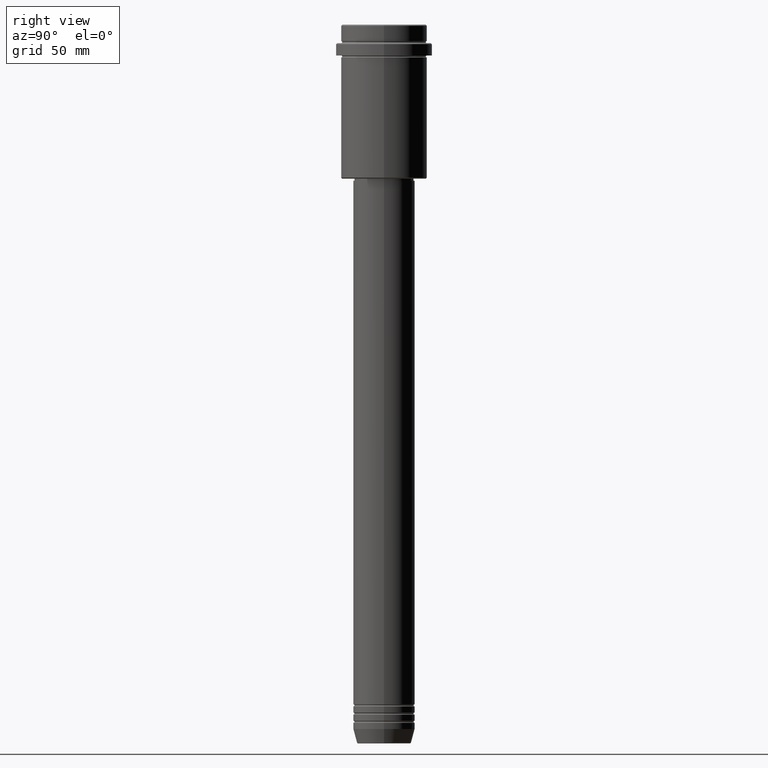
[diagram: clean part render]
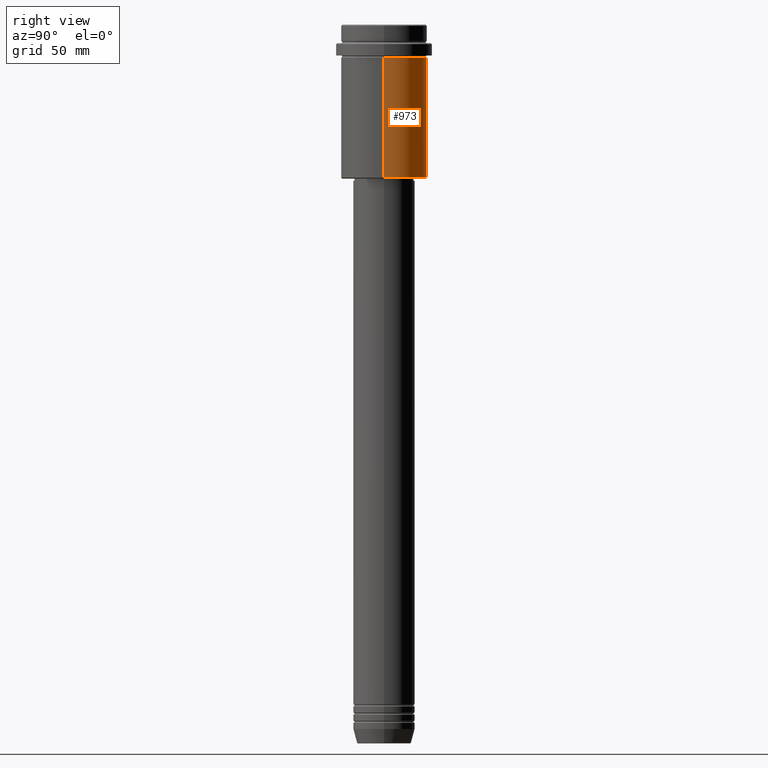
[diagram: same view with one face highlighted and labeled with its STEP entity id]
A machine part, right view. The second image highlights one B-rep face of the part: STEP entity #973.
In plain terms, the highlighted cylindrical surface (partial cylindrical patch) has radius 21 mm, axis along (-0, -0, 1).
Its self-contained STEP definition (entity closure, byte-faithful):
#17 = CARTESIAN_POINT ( 'NONE',  ( 0.000000000000000000, 0.000000000000000000, -74.49999999999997158 ) ) ;
#57 = ORIENTED_EDGE ( 'NONE', *, *, #845, .F. ) ;
#74 = VERTEX_POINT ( 'NONE', #622 ) ;
#109 = CIRCLE ( 'NONE', #721, 20.99999999999999645 ) ;
#126 = AXIS2_PLACEMENT_3D ( 'NONE', #17, #302, #1195 ) ;
#148 = EDGE_LOOP ( 'NONE', ( #1311, #581, #252, #57 ) ) ;
#190 = VERTEX_POINT ( 'NONE', #771 ) ;
#218 = CARTESIAN_POINT ( 'NONE',  ( -20.99999999999999645, 2.571758278209441267E-15, -74.49999999999997158 ) ) ;
#227 = CARTESIAN_POINT ( 'NONE',  ( -20.99999999999999645, 2.571758278209441267E-15, 0.000000000000000000 ) ) ;
#252 = ORIENTED_EDGE ( 'NONE', *, *, #1402, .F. ) ;
#258 = DIRECTION ( 'NONE',  ( -0.000000000000000000, -0.000000000000000000, 1.000000000000000000 ) ) ;
#302 = DIRECTION ( 'NONE',  ( -0.000000000000000000, -0.000000000000000000, 1.000000000000000000 ) ) ;
#311 = EDGE_CURVE ( 'NONE', #190, #688, #761, .T. ) ;
#319 = EDGE_CURVE ( 'NONE', #688, #74, #444, .T. ) ;
#382 = DIRECTION ( 'NONE',  ( 1.000000000000000000, 0.000000000000000000, 0.000000000000000000 ) ) ;
#444 = LINE ( 'NONE', #227, #498 ) ;
#475 = VECTOR ( 'NONE', #618, 1000.000000000000000 ) ;
#479 = DIRECTION ( 'NONE',  ( -0.000000000000000000, -0.000000000000000000, 1.000000000000000000 ) ) ;
#498 = VECTOR ( 'NONE', #976, 1000.000000000000000 ) ;
#581 = ORIENTED_EDGE ( 'NONE', *, *, #319, .T. ) ;
#618 = DIRECTION ( 'NONE',  ( -0.000000000000000000, -0.000000000000000000, 1.000000000000000000 ) ) ;
#622 = CARTESIAN_POINT ( 'NONE',  ( -20.99999999999999645, 2.571758278209441267E-15, -16.00000000000000355 ) ) ;
#688 = VERTEX_POINT ( 'NONE', #218 ) ;
#706 = DIRECTION ( 'NONE',  ( 1.000000000000000000, 0.000000000000000000, 0.000000000000000000 ) ) ;
#721 = AXIS2_PLACEMENT_3D ( 'NONE', #1022, #479, #382 ) ;
#761 = CIRCLE ( 'NONE', #126, 20.99999999999999645 ) ;
#769 = LINE ( 'NONE', #1182, #475 ) ;
#771 = CARTESIAN_POINT ( 'NONE',  ( 20.99999999999999645, 0.000000000000000000, -74.49999999999997158 ) ) ;
#845 = EDGE_CURVE ( 'NONE', #190, #928, #769, .T. ) ;
#914 = CYLINDRICAL_SURFACE ( 'NONE', #1331, 20.99999999999999645 ) ;
#928 = VERTEX_POINT ( 'NONE', #1090 ) ;
#973 = ADVANCED_FACE ( 'NONE', ( #1250 ), #914, .T. ) ;
#976 = DIRECTION ( 'NONE',  ( -0.000000000000000000, -0.000000000000000000, 1.000000000000000000 ) ) ;
#1022 = CARTESIAN_POINT ( 'NONE',  ( 0.000000000000000000, 0.000000000000000000, -16.00000000000000355 ) ) ;
#1090 = CARTESIAN_POINT ( 'NONE',  ( 20.99999999999999645, 0.000000000000000000, -16.00000000000000355 ) ) ;
#1182 = CARTESIAN_POINT ( 'NONE',  ( 20.99999999999999645, 0.000000000000000000, 0.000000000000000000 ) ) ;
#1195 = DIRECTION ( 'NONE',  ( -1.000000000000000000, 0.000000000000000000, 0.000000000000000000 ) ) ;
#1250 = FACE_OUTER_BOUND ( 'NONE', #148, .T. ) ;
#1311 = ORIENTED_EDGE ( 'NONE', *, *, #311, .T. ) ;
#1331 = AXIS2_PLACEMENT_3D ( 'NONE', #1350, #258, #706 ) ;
#1350 = CARTESIAN_POINT ( 'NONE',  ( 0.000000000000000000, 0.000000000000000000, 0.000000000000000000 ) ) ;
#1402 = EDGE_CURVE ( 'NONE', #928, #74, #109, .T. ) ;